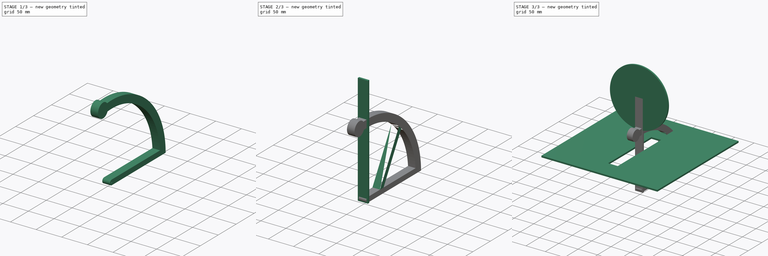
[diagram: build sequence overview — one tinted view per stage of 3, left to right]
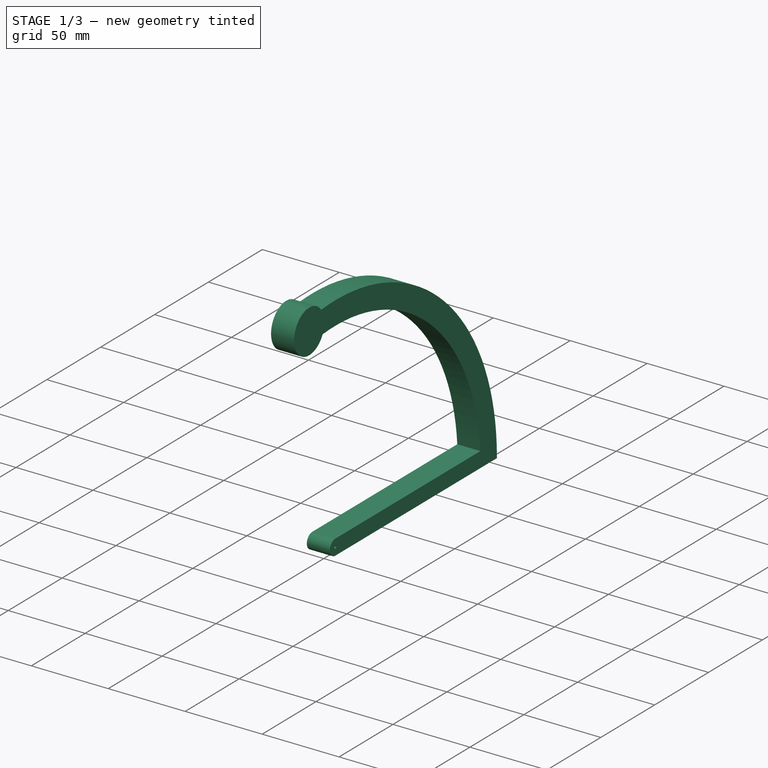
[diagram: stage 1 of 3 — iso view after this stage's code; geometry added in this stage tinted green]
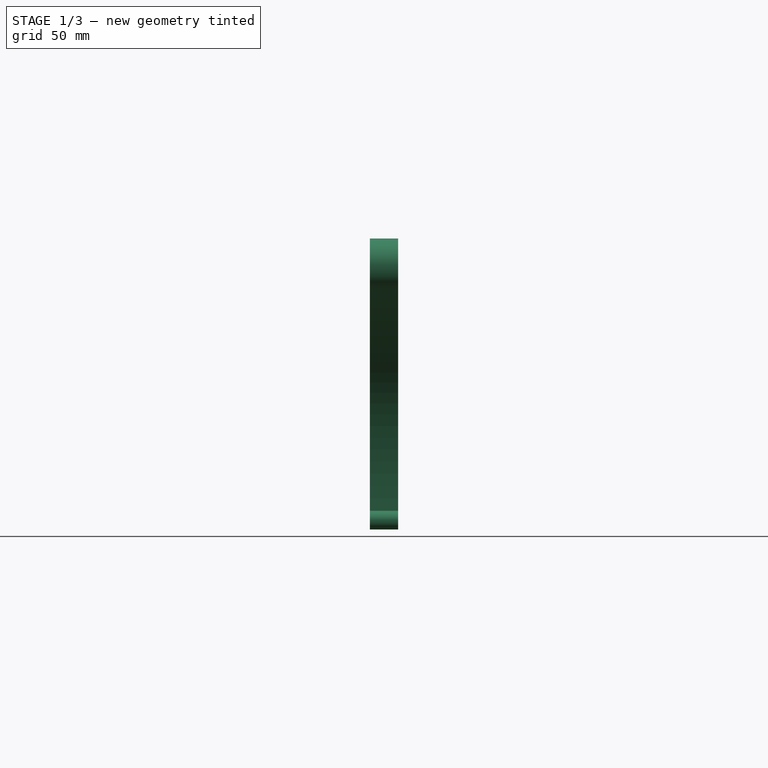
[diagram: stage 1 of 3 — front view after this stage's code; geometry added in this stage tinted green]
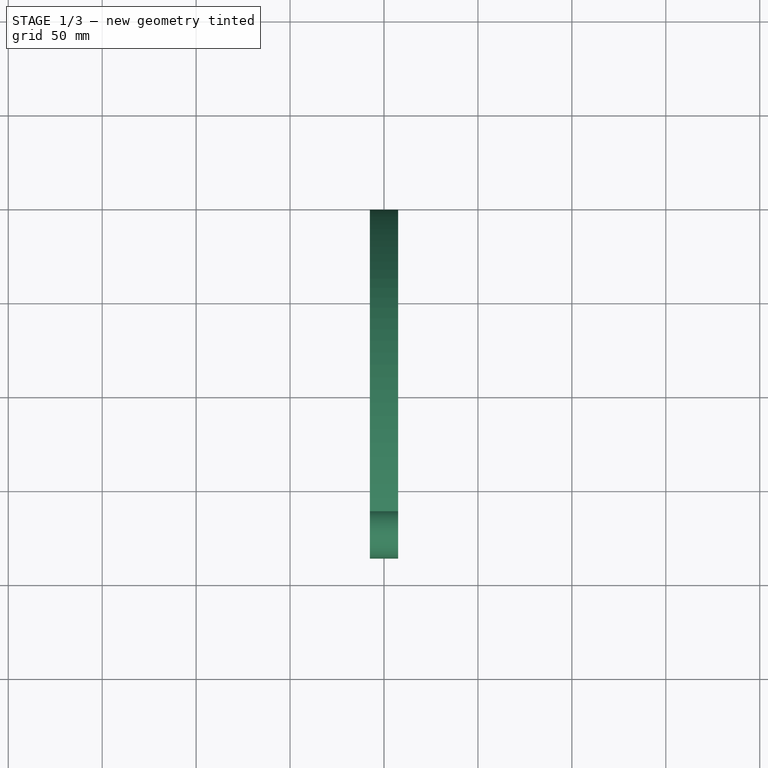
[diagram: stage 1 of 3 — top view after this stage's code; geometry added in this stage tinted green]
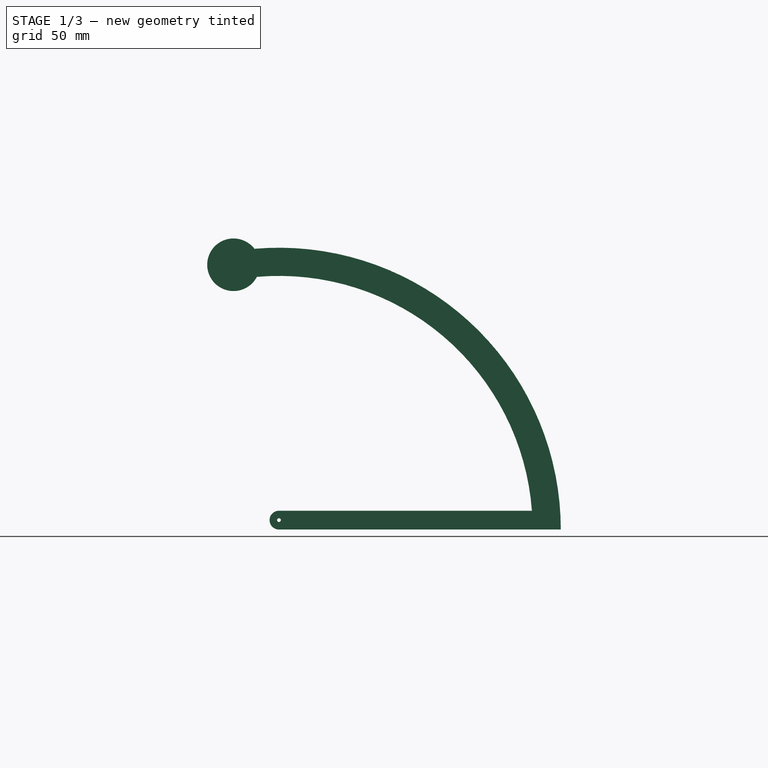
[diagram: stage 1 of 3 — right view after this stage's code; geometry added in this stage tinted green]
FCSTD DOCUMENT  (FreeCAD 0.19R24291 (Git))
Label: nerf_target
License: All rights reserved
LicenseURL: http://en.wikipedia.org/wiki/All_rights_reserved
objects: Sketcher::SketchObject×7, Part::Feature×6, PartDesign::Pad×5, PartDesign::Body×3, PartDesign::Pocket×2, Part::FeaturePython×1, PartDesign::FeatureBase×1
note: 32 computed .brp shape members not serialized (recipe doc carries the construction recipe); baked Part::Feature solids carry a one-line shape summary decoded from their .brp

FEATURE [PartDesign::Body] Body001  label="Target Arm"
  Group = -> [Sketch001,Pad,Sketch002,Pad001]
  Origin = -> Origin001
  Placement = pos=(0,-140,100) rot=(-1,0,0;0rad)
  Tip = -> Pad001
FEATURE [Sketcher::SketchObject] Sketch003
  FullyConstrained = true
  MapMode = 5
  Placement = pos=(0,0,0) rot=(0.57735,0.57735,0.57735;2.0944rad)
  Support = -> [YZ_Plane002]
  sketch-geometry (4):
    g0: ArcOfCircle CenterX=0 CenterY=0 CenterZ=0 NormalX=0 NormalY=0 NormalZ=1 AngleXU=0 Radius=150 StartAngle=0 EndAngle=1.65806
    g1: ArcOfCircle CenterX=0 CenterY=0 CenterZ=0 NormalX=0 NormalY=0 NormalZ=1 AngleXU=0 Radius=135 StartAngle=0 EndAngle=1.65806
    g2: LineSegment StartX=135 StartY=0 StartZ=0 EndX=150 EndY=0 EndZ=0
    g3: ArcOfCircle CenterX=-24.1963 CenterY=140.927 CenterZ=0 NormalX=0 NormalY=0 NormalZ=1 AngleXU=0 Radius=14 StartAngle=0.65262 EndAngle=5.8051
  constraints (13):
    c: Coincident(g1,g0)
    c: Radius(g1) = 135
    c: Radius(g0) = 150
    c: PointOnObject(g1,g-1)
    c: PointOnObject(g0,g-1)
    c: Coincident(g2,g1)
    c: Coincident(g2,g0)
    c: Angle(g1) = 1.65806
    c: Angle(g0) = 1.65806
    c: Coincident(g3,g0)
    c: Coincident(g3,g1)
    c: Radius(g3) = 14
    c: Coincident(g-1,g0)
FEATURE [PartDesign::Pad] Pad002  label="Arc"
  Direction = (1,1,1)
  Length = 15
  Length2 = 100
  Midplane = true
  Placement = pos=(0,0,0) rot=(0.57735,0.57735,0.57735;2.0944rad)
  Profile = -> Sketch003
  Type = 0
FEATURE [Sketcher::SketchObject] Sketch004
  ExternalGeometry = -> [Pad002]
  FullyConstrained = true
  MapMode = 5
  Placement = pos=(0,0,0) rot=(0.57735,0.57735,0.57735;2.0944rad)
  Support = -> [YZ_Plane002]
  sketch-geometry (5):
    g0: LineSegment StartX=135 StartY=-3.73e-14 StartZ=0 EndX=0 EndY=0 EndZ=0
    g1: LineSegment StartX=-9e-16 StartY=10 StartZ=0 EndX=135 EndY=10 EndZ=0
    g2: LineSegment StartX=135 StartY=10 StartZ=0 EndX=135 EndY=-3.73e-14 EndZ=0
    g3: ArcOfCircle CenterX=0 CenterY=5 CenterZ=0 NormalX=0 NormalY=0 NormalZ=1 AngleXU=0 Radius=5 StartAngle=1.5708 EndAngle=4.71239
    g4: LineSegment StartX=-9e-16 StartY=10 StartZ=0 EndX=-9e-16 EndY=0 EndZ=0
  constraints (13):
    c: Coincident(g1,g2)
    c: Coincident(g2,g0)
    c: Horizontal(g1)
    c: Vertical(g2)
    c: Coincident(g0,g-3)
    c: Coincident(g3,g0)
    c: Symmetric(g1,g0,g3)
    c: Coincident(g3,g1)
    c: Distance(g1,g0) = 10
    c: Coincident(g4,g1)
    c: Coincident(g4,g0)
    c: Vertical(g4)
    c: Coincident(g-1,g0)
FEATURE [PartDesign::Pad] Pad003  label="Main Support"
  BaseFeature = -> Pad002
  Direction = (1,1,1)
  Length = 15
  Length2 = 100
  Midplane = true
  Placement = pos=(0,0,0) rot=(0.57735,0.57735,0.57735;2.0944rad)
  Profile = -> Sketch004
  Type = 0
FEATURE [Sketcher::SketchObject] Sketch005
  ExternalGeometry = -> [Pad003]
  FullyConstrained = true
  MapMode = 5
  Placement = pos=(0,0,0) rot=(0.57735,0.57735,0.57735;2.0944rad)
  Support = -> [YZ_Plane002]
  sketch-geometry (1):
    g0: Circle CenterX=0 CenterY=5 CenterZ=0 NormalX=0 NormalY=0 NormalZ=1 AngleXU=0 Radius=1
  constraints (2):
    c: Symmetric(g-3,g-4,g0)
    c: Diameter(g0) = 2
FEATURE [PartDesign::Pocket] Pocket001  label="Screw Hole"
  BaseFeature = -> Pad003
  Length = 15
  Length2 = 100
  Midplane = true
  Placement = pos=(0,0,0) rot=(0.57735,0.57735,0.57735;2.0944rad)
  Profile = -> Sketch005
  Type = 0
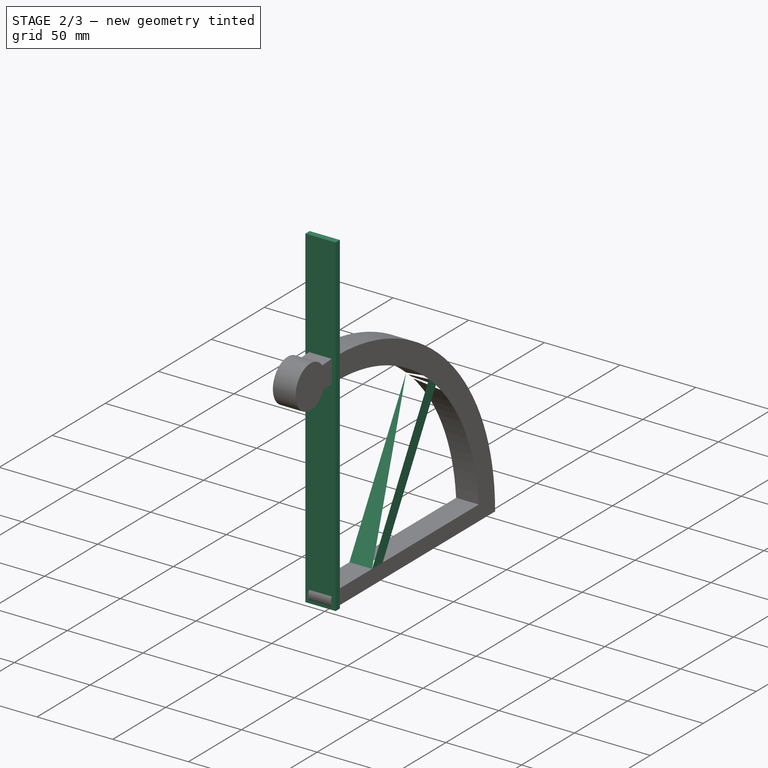
[diagram: stage 2 of 3 — iso view after this stage's code; geometry added in this stage tinted green]
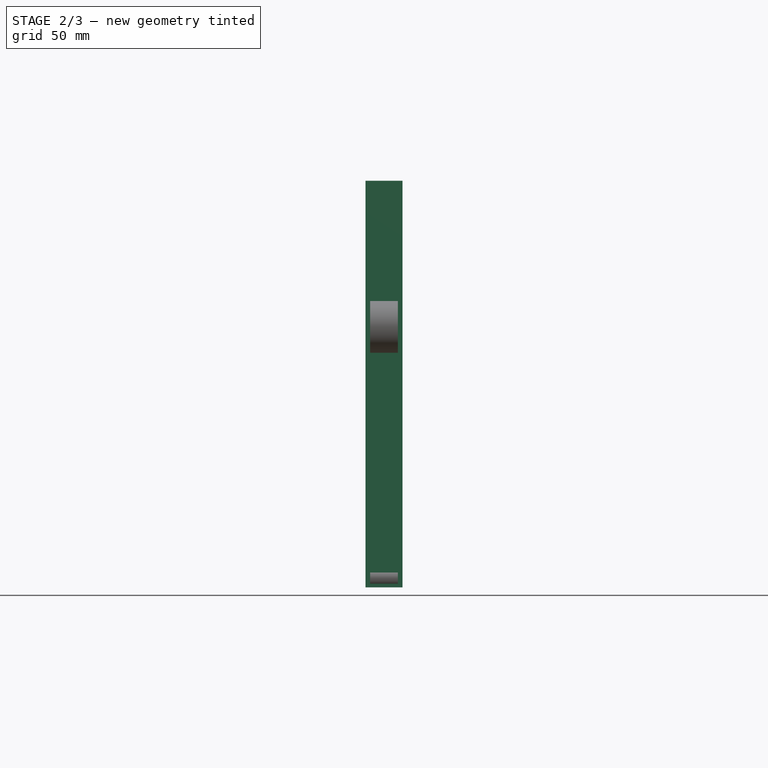
[diagram: stage 2 of 3 — front view after this stage's code; geometry added in this stage tinted green]
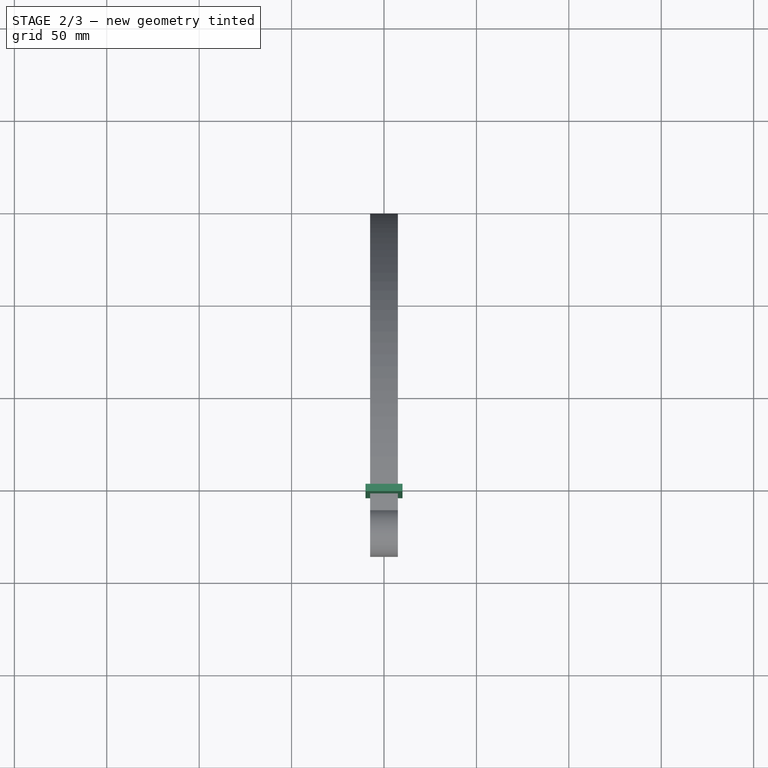
[diagram: stage 2 of 3 — top view after this stage's code; geometry added in this stage tinted green]
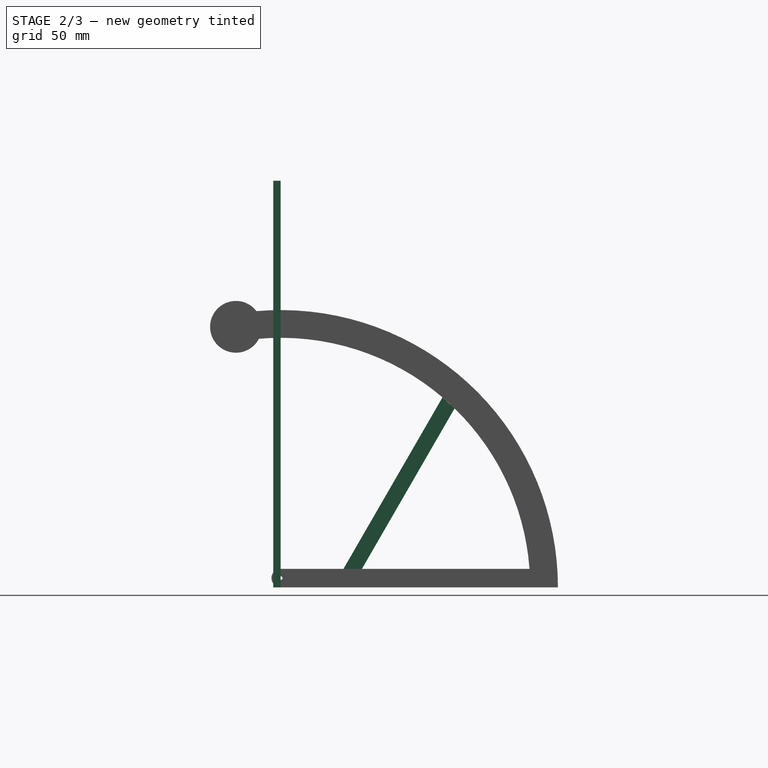
[diagram: stage 2 of 3 — right view after this stage's code; geometry added in this stage tinted green]
FEATURE [PartDesign::Body] Body  label="Box Lid"
  BaseFeature = -> top_panel
  Group = -> [BaseFeature,Sketch,Pocket]
  Origin = -> Origin
  Tip = -> Pocket
FEATURE [Sketcher::SketchObject] Sketch001
  FullyConstrained = true
  MapMode = 5
  Placement = pos=(0,0,0) rot=(1,0,0;1.5708rad)
  Support = -> [XZ_Plane001]
  sketch-geometry (4):
    g0: LineSegment StartX=-10 StartY=0 StartZ=0 EndX=10 EndY=0 EndZ=0
    g1: LineSegment StartX=10 StartY=0 StartZ=0 EndX=10 EndY=220 EndZ=0
    g2: LineSegment StartX=10 StartY=220 StartZ=0 EndX=-10 EndY=220 EndZ=0
    g3: LineSegment StartX=-10 StartY=220 StartZ=0 EndX=-10 EndY=0 EndZ=0
  constraints (11):
    c: Coincident(g0,g1)
    c: Coincident(g1,g2)
    c: Coincident(g2,g3)
    c: Coincident(g3,g0)
    c: Horizontal(g0)
    c: Horizontal(g2)
    c: Vertical(g1)
    c: Vertical(g3)
    c: DistanceX(g0,g0) = 20
    c: DistanceY(g3,g3) = 220
    c: Symmetric(g0,g0,g-1)
FEATURE [PartDesign::Pad] Pad
  Direction = (1,1,1)
  Length = 4
  Length2 = 100
  Placement = pos=(0,0,0) rot=(1,0,0;1.5708rad)
  Profile = -> Sketch001
  Type = 0
FEATURE [Sketcher::SketchObject] Sketch006
  ExternalGeometry = -> [Pocket001]
  FullyConstrained = false
  MapMode = 5
  Placement = pos=(0,0,0) rot=(0.57735,0.57735,0.57735;2.0944rad)
  Support = -> [YZ_Plane002]
  sketch-geometry (4):
    g0: LineSegment StartX=33.9807 StartY=10 StartZ=0 EndX=87.5411 EndY=102.769 EndZ=0
    g1: LineSegment StartX=94.0965 StartY=96.8031 StartZ=0 EndX=43.9807 EndY=10 EndZ=0
    g2: LineSegment StartX=33.9807 StartY=10 StartZ=0 EndX=43.9807 EndY=10 EndZ=0
    g3: LineSegment StartX=94.0965 StartY=96.8031 StartZ=0 EndX=87.5411 EndY=102.769 EndZ=0
  constraints (11):
    c: PointOnObject(g0,g-3)
    c: PointOnObject(g0,g-4)
    c: PointOnObject(g1,g-4)
    c: PointOnObject(g1,g-3)
    c: Coincident(g2,g0)
    c: Coincident(g2,g1)
    c: Coincident(g3,g1)
    c: Coincident(g3,g0)
    c: Parallel(g0,g1)
    c: Distance(g2) = 10
    c: Angle(g1,g2,g1) = 2.0944
FEATURE [PartDesign::Pad] Pad004
  BaseFeature = -> Pocket001
  Direction = (1,1,1)
  Length = 15
  Length2 = 100
  Midplane = true
  Placement = pos=(0,0,0) rot=(0.57735,0.57735,0.57735;2.0944rad)
  Profile = -> Sketch006
  Type = 0
FEATURE [PartDesign::Body] Body002  label="Reset Arm"
  Group = -> [Sketch003,Pad002,Sketch004,Pad003,Sketch005,Pocket001,Sketch006,Pad004]
  Origin = -> Origin002
  Placement = pos=(0,-100,60) rot=(-1,0,0;1.5708rad)
  Tip = -> Pad004
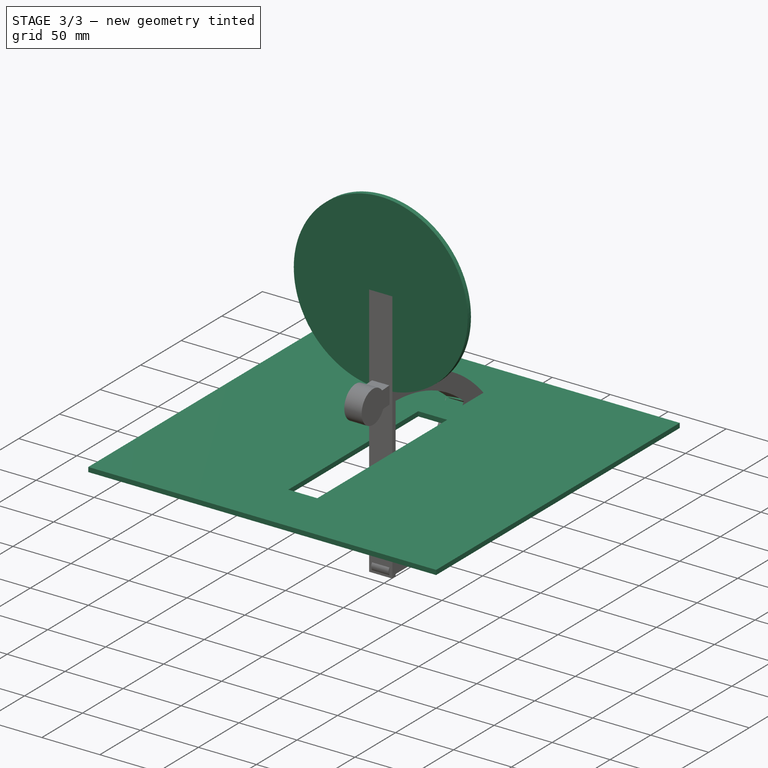
[diagram: stage 3 of 3 — iso view after this stage's code; geometry added in this stage tinted green]
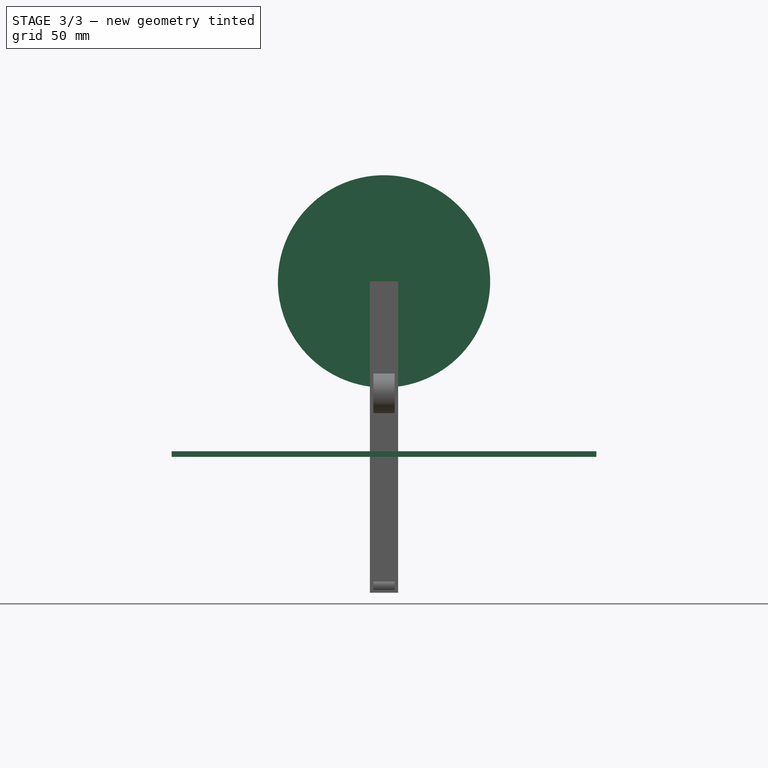
[diagram: stage 3 of 3 — front view after this stage's code; geometry added in this stage tinted green]
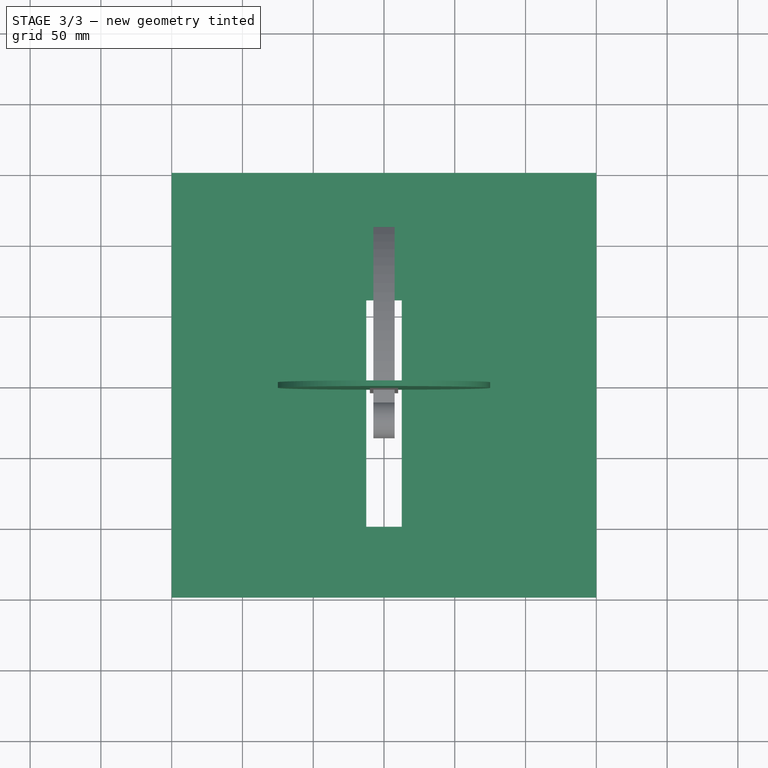
[diagram: stage 3 of 3 — top view after this stage's code; geometry added in this stage tinted green]
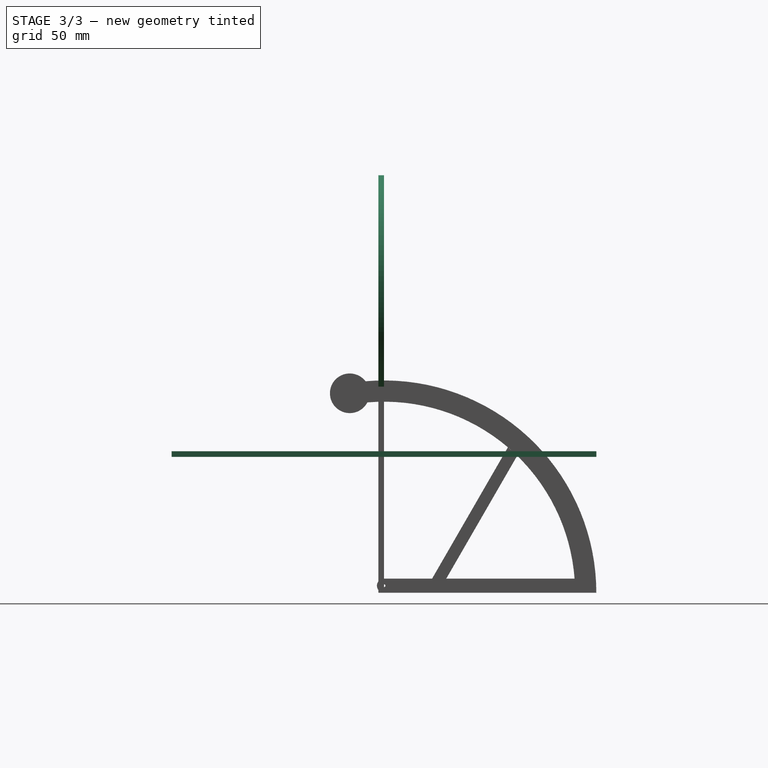
[diagram: stage 3 of 3 — right view after this stage's code; geometry added in this stage tinted green]
FEATURE [Part::Feature] face_panel
  shape: bbox 300 x 4 x 192 mm, 6 faces (baked)
FEATURE [Part::Feature] behind_panel
  Placement = pos=(0,-296,0) rot=(0,0,1;0rad)
  shape: bbox 300 x 4 x 192 mm, 6 faces (baked)
FEATURE [Part::Feature] left_panel
  shape: bbox 4 x 292 x 192 mm, 6 faces (baked)
FEATURE [Part::Feature] right_panel
  Placement = pos=(-296,0,0) rot=(0,0,1;0rad)
  shape: bbox 4 x 292 x 192 mm, 6 faces (baked)
FEATURE [Part::Feature] bottom_panel
  shape: bbox 300 x 300 x 4 mm, 6 faces (baked)
FEATURE [Part::Feature] top_panel
  shape: bbox 300 x 300 x 4 mm, 6 faces (baked)
FEATURE [Part::FeaturePython] Box  # WARN: FeaturePython — macro-defined, semantics opaque (R4)
  parts = -> [face_panel,behind_panel,left_panel,right_panel,bottom_panel,top_panel]
FEATURE [PartDesign::FeatureBase] BaseFeature
  BaseFeature = -> top_panel
FEATURE [Sketcher::SketchObject] Sketch
  AttachmentOffset = pos=(0,0,100) rot=(0,0,1;0rad)
  FullyConstrained = true
  MapMode = 5
  Placement = pos=(0,0,100) rot=(0,0,1;0rad)
  Support = -> [XY_Plane]
  sketch-geometry (4):
    g0: LineSegment StartX=-12.5 StartY=-100 StartZ=0 EndX=12.5 EndY=-100 EndZ=0
    g1: LineSegment StartX=12.5 StartY=-100 StartZ=0 EndX=12.5 EndY=60 EndZ=0
    g2: LineSegment StartX=12.5 StartY=60 StartZ=0 EndX=-12.5 EndY=60 EndZ=0
    g3: LineSegment StartX=-12.5 StartY=60 StartZ=0 EndX=-12.5 EndY=-100 EndZ=0
  constraints (11):
    c: Coincident(g0,g1)
    c: Coincident(g1,g2)
    c: Coincident(g2,g3)
    c: Coincident(g3,g0)
    c: Horizontal(g0)
    c: Vertical(g1)
    c: Vertical(g3)
    c: Symmetric(g2,g1,g-2)
    c: Distance(g2,g1) = 25
    c: Distance(g1,g0) = 160
    c: Distance(g-1,g2) = 60
FEATURE [PartDesign::Pocket] Pocket
  BaseFeature = -> BaseFeature
  Length = 4
  Length2 = 100
  Profile = -> Sketch
  Type = 0
FEATURE [Sketcher::SketchObject] Sketch002
  ExternalGeometry = -> [Pad]
  FullyConstrained = true
  MapMode = 5
  Placement = pos=(0,0,0) rot=(1,0,0;1.5708rad)
  Support = -> [XZ_Plane001]
  sketch-geometry (1):
    g0: Circle CenterX=-7e-16 CenterY=220 CenterZ=0 NormalX=0 NormalY=0 NormalZ=1 AngleXU=0 Radius=75
  constraints (2):
    c: Radius(g0) = 75
    c: Symmetric(g-3,g-5,g0)
FEATURE [PartDesign::Pad] Pad001
  BaseFeature = -> Pad
  Direction = (1,1,1)
  Length = 4
  Length2 = 100
  Placement = pos=(0,0,0) rot=(1,0,0;1.5708rad)
  Profile = -> Sketch002
  Type = 0
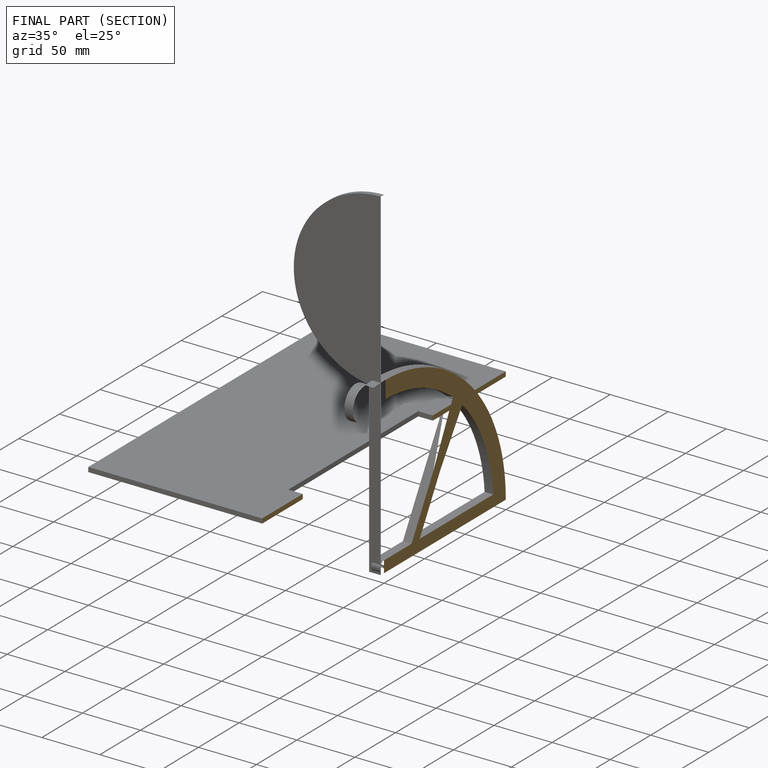
[diagram: finished part — half-section view (interior)]
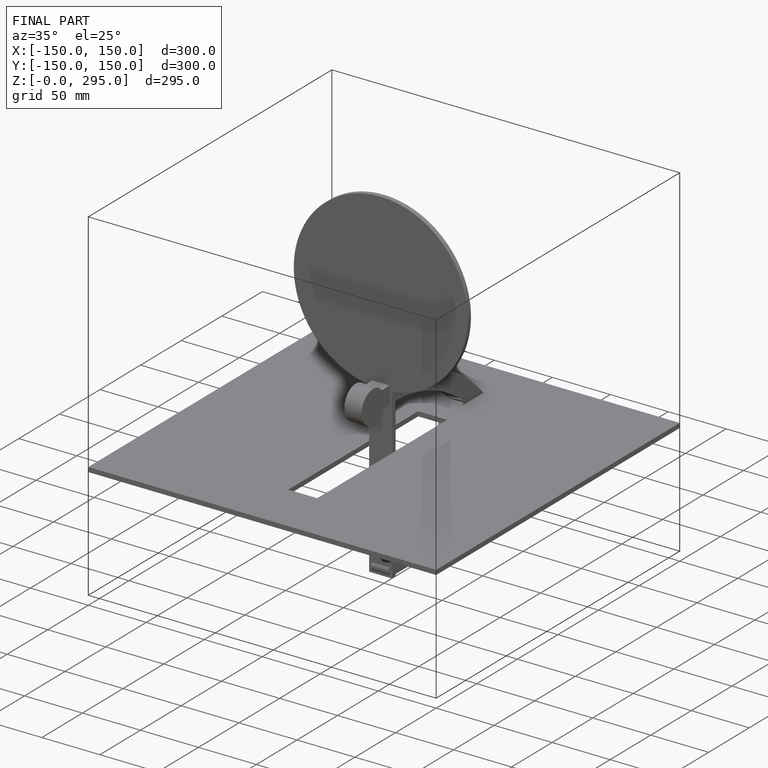
[diagram: finished part — iso view with bounding-box wireframe]
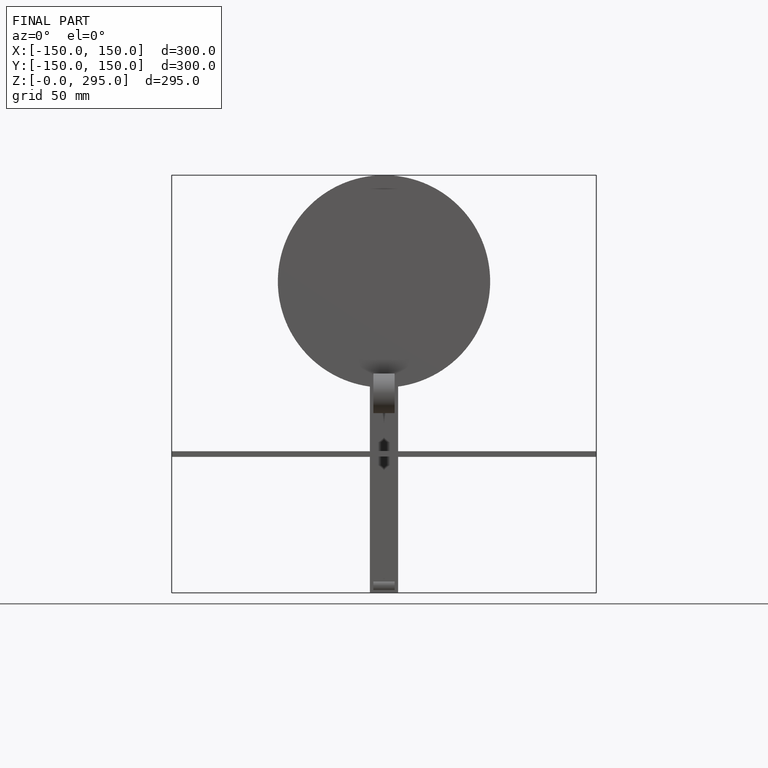
[diagram: finished part — front view with bounding-box wireframe]
